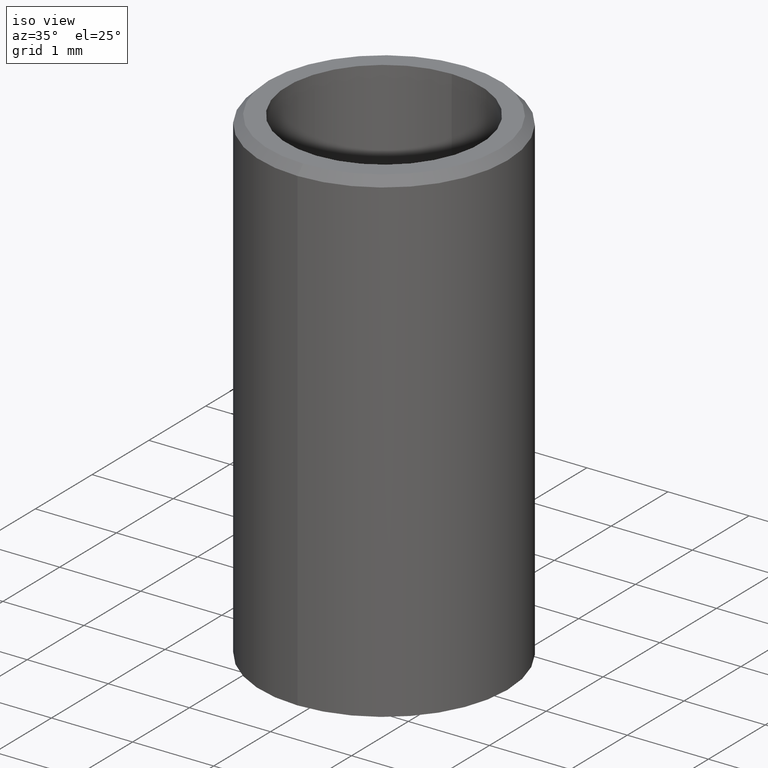
[diagram: clean part render]
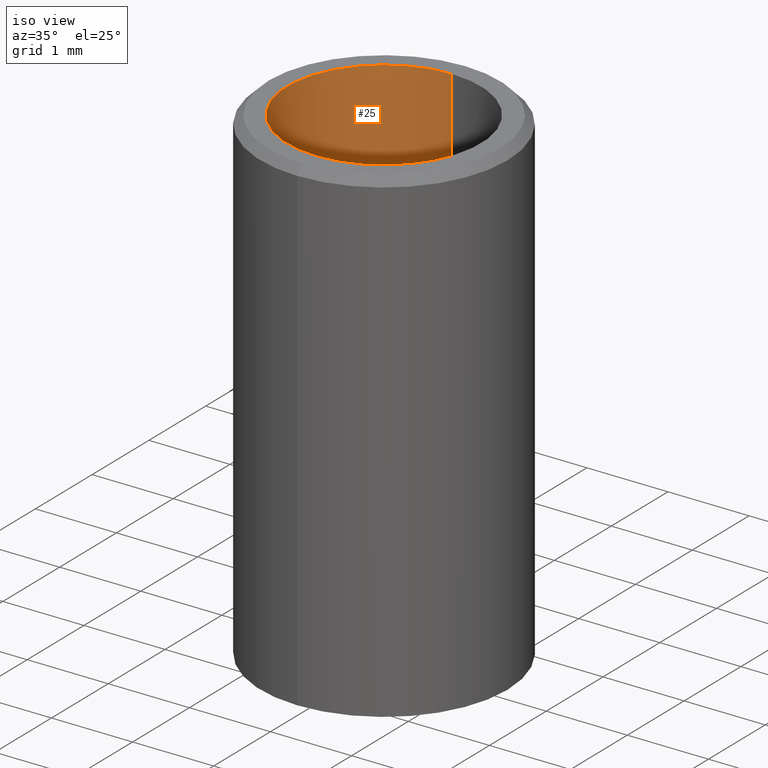
[diagram: same view with one face highlighted and labeled with its STEP entity id]
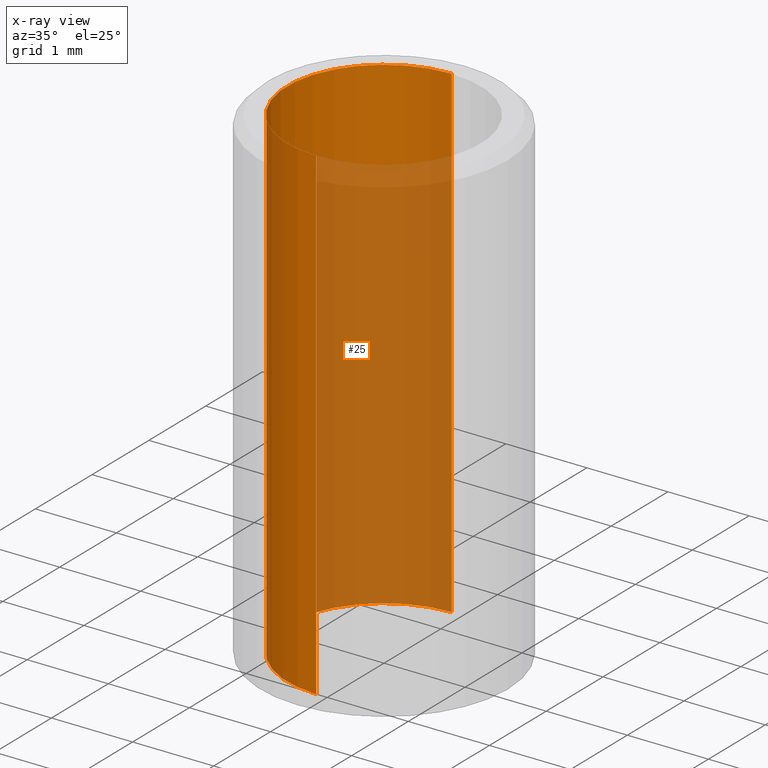
[diagram: x-ray of the same camera — body ghosted, the highlighted face saturated]
A machine part, iso view. The second image highlights one B-rep face of the part: STEP entity #25.
The next image is the same camera in x-ray: the body ghosted, the highlighted face saturated — about 60% of this face is hidden behind the body in this view.
In plain terms, the highlighted cylindrical surface (partial cylindrical patch) has radius 1.1938 mm, axis along (0, 0, -1).
Its self-contained STEP definition (entity closure, byte-faithful):
#25=ADVANCED_FACE('',(#33),#83,.F.);
#33=FACE_OUTER_BOUND('',#41,.F.);
#41=EDGE_LOOP('',(#51,#52,#53,#54));
#51=ORIENTED_EDGE('',*,*,#111,.F.);
#52=ORIENTED_EDGE('',*,*,#115,.F.);
#53=ORIENTED_EDGE('',*,*,#112,.F.);
#54=ORIENTED_EDGE('',*,*,#114,.T.);
#83=CYLINDRICAL_SURFACE('',#182,1.1938);
#95=LINE('',#261,#101);
#96=LINE('',#262,#102);
#101=VECTOR('',#210,6.);
#102=VECTOR('',#211,6.);
#111=EDGE_CURVE('',#138,#137,#127,.T.);
#112=EDGE_CURVE('',#136,#135,#128,.T.);
#114=EDGE_CURVE('',#136,#137,#95,.T.);
#115=EDGE_CURVE('',#135,#138,#96,.T.);
#127=CIRCLE('',#176,1.1938);
#128=CIRCLE('',#177,1.1938);
#135=VERTEX_POINT('',#246);
#136=VERTEX_POINT('',#247);
#137=VERTEX_POINT('',#248);
#138=VERTEX_POINT('',#249);
#176=AXIS2_PLACEMENT_3D('',#258,#204,#205);
#177=AXIS2_PLACEMENT_3D('',#259,#206,#207);
#182=AXIS2_PLACEMENT_3D('',#270,#222,#223);
#204=DIRECTION('',(0.,0.,1.));
#205=DIRECTION('',(0.,1.,0.));
#206=DIRECTION('',(0.,0.,-1.));
#207=DIRECTION('',(0.,-1.,0.));
#210=DIRECTION('',(0.,0.,1.));
#211=DIRECTION('',(0.,0.,1.));
#222=DIRECTION('',(0.,0.,-1.));
#223=DIRECTION('',(0.,-1.,0.));
#246=CARTESIAN_POINT('',(0.,1.1938,-6.));
#247=CARTESIAN_POINT('',(0.,-1.1938,-6.));
#248=CARTESIAN_POINT('',(0.,-1.1938,0.));
#249=CARTESIAN_POINT('',(0.,1.1938,0.));
#258=CARTESIAN_POINT('',(0.,0.,0.));
#259=CARTESIAN_POINT('',(0.,0.,-6.));
#261=CARTESIAN_POINT('',(0.,-1.1938,-6.));
#262=CARTESIAN_POINT('',(0.,1.1938,-6.));
#270=CARTESIAN_POINT('',(0.,0.,-6.));